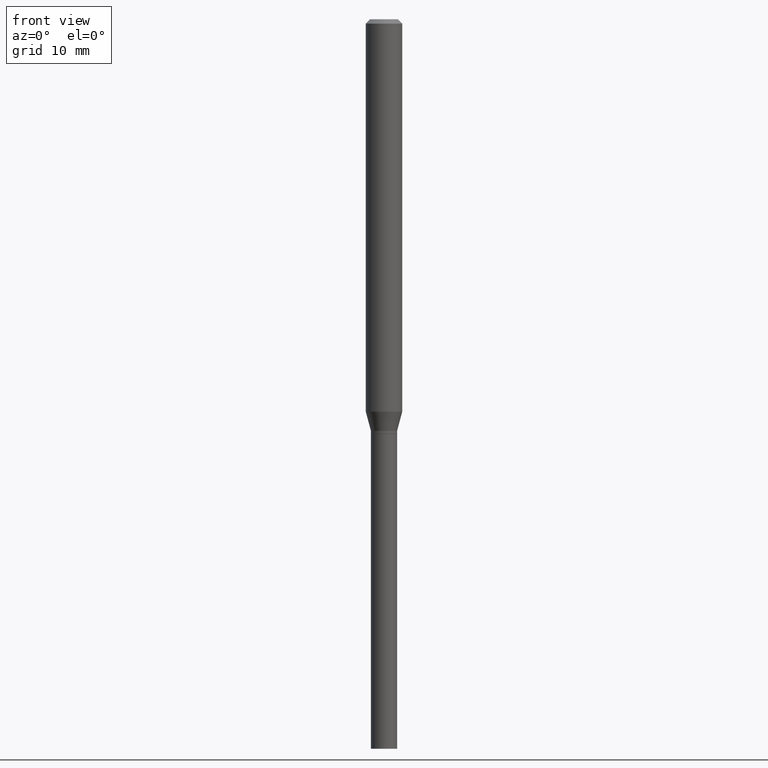
[diagram: clean part render]
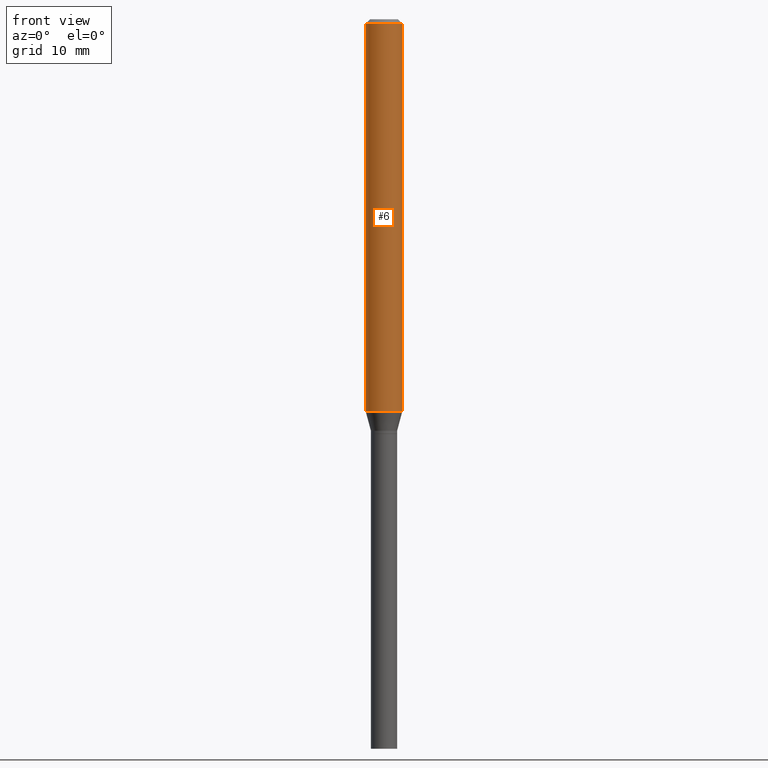
[diagram: same view with one face highlighted and labeled with its STEP entity id]
A machine part, front view. The second image highlights one B-rep face of the part: STEP entity #6.
In plain terms, the highlighted cylindrical surface (edge-blend (fillet) strip) has radius 1.5875 mm, axis along (-0, 0, 1).
Its self-contained STEP definition (entity closure, byte-faithful):
#4 = VERTEX_POINT ( 'NONE', #409 ) ;
#6 = ADVANCED_FACE ( 'NONE', ( #189 ), #192, .T. ) ;
#8 = DIRECTION ( 'NONE',  ( 1.000000000000000000, -6.982962677686266711E-15, 4.876176775795935793E-29 ) ) ;
#27 = CIRCLE ( 'NONE', #244, 0.06250000000000000000 ) ;
#46 = CARTESIAN_POINT ( 'NONE',  ( -0.06250000000000000000, -4.250867727289546507E-15, -1.344689110867543391 ) ) ;
#56 = CARTESIAN_POINT ( 'NONE',  ( 3.668203209277705088E-31, -5.237222008264718399E-17, -0.01499999999999999944 ) ) ;
#59 = EDGE_CURVE ( 'NONE', #4, #464, #234, .T. ) ;
#62 = CIRCLE ( 'NONE', #72, 0.06250000000000000000 ) ;
#66 = DIRECTION ( 'NONE',  ( -2.445468806185136877E-29, 3.491481338843145188E-15, 1.000000000000000000 ) ) ;
#72 = AXIS2_PLACEMENT_3D ( 'NONE', #56, #311, #266 ) ;
#84 = ORIENTED_EDGE ( 'NONE', *, *, #93, .F. ) ;
#92 = DIRECTION ( 'NONE',  ( -2.445468806185136597E-29, 3.491481338843145583E-15, 1.000000000000000000 ) ) ;
#93 = EDGE_CURVE ( 'NONE', #316, #464, #62, .T. ) ;
#120 = EDGE_CURVE ( 'NONE', #131, #4, #27, .T. ) ;
#131 = VERTEX_POINT ( 'NONE', #46 ) ;
#152 = CARTESIAN_POINT ( 'NONE',  ( 0.06250000000000000000, -4.364351673553916694E-16, 3.047610484872459871E-30 ) ) ;
#189 = FACE_OUTER_BOUND ( 'NONE', #431, .T. ) ;
#192 = CYLINDRICAL_SURFACE ( 'NONE', #205, 0.06250000000000000000 ) ;
#205 = AXIS2_PLACEMENT_3D ( 'NONE', #411, #302, #8 ) ;
#212 = ORIENTED_EDGE ( 'NONE', *, *, #59, .T. ) ;
#234 = LINE ( 'NONE', #152, #249 ) ;
#244 = AXIS2_PLACEMENT_3D ( 'NONE', #413, #92, #261 ) ;
#249 = VECTOR ( 'NONE', #299, 39.37007874015748143 ) ;
#253 = EDGE_CURVE ( 'NONE', #131, #316, #452, .T. ) ;
#261 = DIRECTION ( 'NONE',  ( 1.000000000000000000, -6.982962677686262766E-15, 0.000000000000000000 ) ) ;
#266 = DIRECTION ( 'NONE',  ( 1.000000000000000000, -6.982962677686266711E-15, 0.000000000000000000 ) ) ;
#274 = CARTESIAN_POINT ( 'NONE',  ( -0.06250000000000000000, -1.929575368761065682E-15, -0.01499999999999999944 ) ) ;
#285 = CARTESIAN_POINT ( 'NONE',  ( 0.06250000000000000000, -4.888073874380388472E-16, -0.01499999999999999944 ) ) ;
#299 = DIRECTION ( 'NONE',  ( -2.445468806185136877E-29, 3.491481338843145188E-15, 1.000000000000000000 ) ) ;
#302 = DIRECTION ( 'NONE',  ( -2.445468806185136597E-29, 3.491481338843145583E-15, 1.000000000000000000 ) ) ;
#311 = DIRECTION ( 'NONE',  ( -2.445468806185136597E-29, 3.491481338843145583E-15, 1.000000000000000000 ) ) ;
#316 = VERTEX_POINT ( 'NONE', #274 ) ;
#329 = ORIENTED_EDGE ( 'NONE', *, *, #253, .F. ) ;
#375 = ORIENTED_EDGE ( 'NONE', *, *, #120, .T. ) ;
#409 = CARTESIAN_POINT ( 'NONE',  ( 0.06250000000000000000, -5.131392104495001581E-15, -1.344689110867543391 ) ) ;
#411 = CARTESIAN_POINT ( 'NONE',  ( 0.000000000000000000, 0.000000000000000000, 0.000000000000000000 ) ) ;
#413 = CARTESIAN_POINT ( 'NONE',  ( 3.288395274643403706E-29, -4.694956937139609123E-15, -1.344689110867543391 ) ) ;
#417 = CARTESIAN_POINT ( 'NONE',  ( -0.06250000000000000000, 4.440892098500626162E-16, -3.074334431409316114E-30 ) ) ;
#431 = EDGE_LOOP ( 'NONE', ( #329, #375, #212, #84 ) ) ;
#441 = VECTOR ( 'NONE', #66, 39.37007874015748143 ) ;
#452 = LINE ( 'NONE', #417, #441 ) ;
#464 = VERTEX_POINT ( 'NONE', #285 ) ;